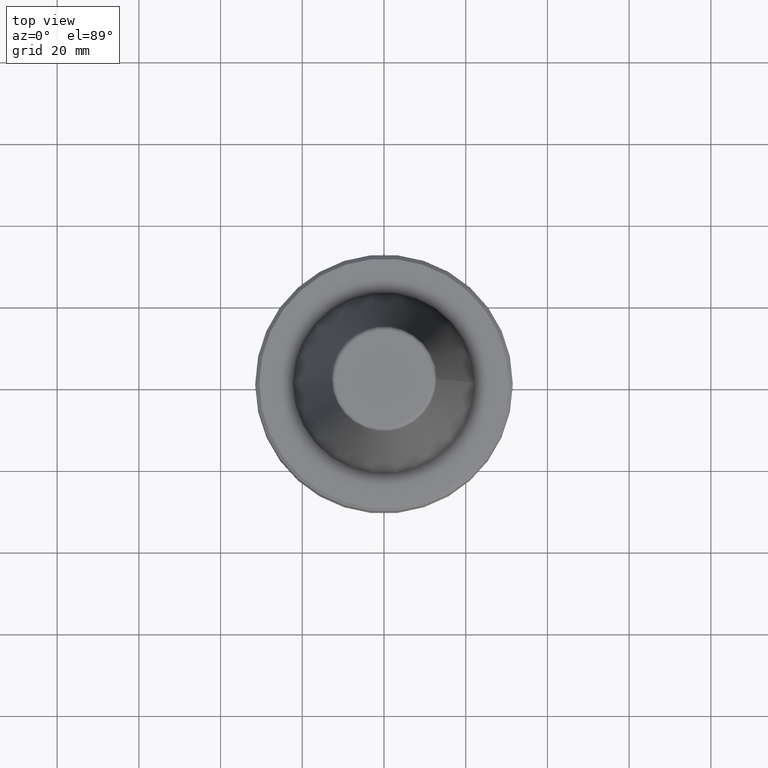
[diagram: clean part render]
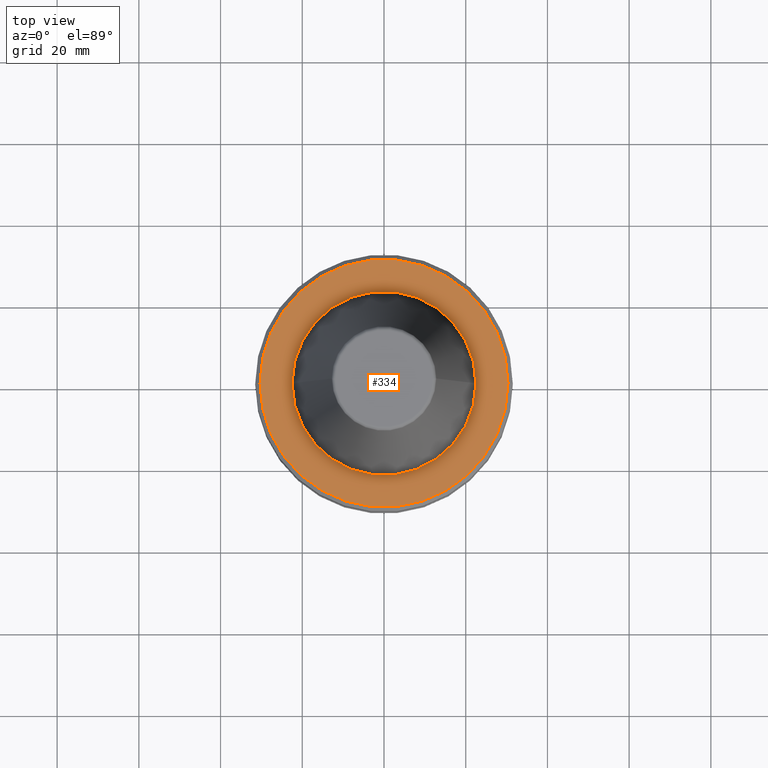
[diagram: same view with one face highlighted and labeled with its STEP entity id]
A machine part, top view. The second image highlights one B-rep face of the part: STEP entity #334.
In plain terms, the highlighted planar face has unit normal (0, -0, 1).
Its self-contained STEP definition (entity closure, byte-faithful):
#2 = AXIS2_PLACEMENT_3D ( 'NONE', #409, #1098, #512 ) ;
#6 = EDGE_CURVE ( 'NONE', #986, #183, #612, .T. ) ;
#10 = AXIS2_PLACEMENT_3D ( 'NONE', #427, #1120, #760 ) ;
#12 = CARTESIAN_POINT ( 'NONE',  ( 22.50000000000000000, 0.0000000000000000000, -2.000000000000001300 ) ) ;
#18 = CARTESIAN_POINT ( 'NONE',  ( -30.33431457505076200, 3.732201245991191800E-015, -2.000000000000001800 ) ) ;
#31 = VERTEX_POINT ( 'NONE', #593 ) ;
#66 = CARTESIAN_POINT ( 'NONE',  ( -22.50000000000000000, 2.755455298081544800E-015, -2.000000000000001300 ) ) ;
#73 = DIRECTION ( 'NONE',  ( 1.000000000000000000, 0.0000000000000000000, 0.0000000000000000000 ) ) ;
#159 = CARTESIAN_POINT ( 'NONE',  ( 0.0000000000000000000, 0.0000000000000000000, -2.000000000000001800 ) ) ;
#176 = FACE_OUTER_BOUND ( 'NONE', #209, .T. ) ;
#183 = VERTEX_POINT ( 'NONE', #12 ) ;
#209 = EDGE_LOOP ( 'NONE', ( #963, #1068 ) ) ;
#246 = EDGE_CURVE ( 'NONE', #265, #31, #833, .T. ) ;
#265 = VERTEX_POINT ( 'NONE', #18 ) ;
#334 = ADVANCED_FACE ( 'NONE', ( #176, #410 ), #471, .T. ) ;
#342 = CIRCLE ( 'NONE', #10, 30.33431457505076200 ) ;
#383 = EDGE_CURVE ( 'NONE', #31, #265, #342, .T. ) ;
#409 = CARTESIAN_POINT ( 'NONE',  ( 0.0000000000000000000, 0.0000000000000000000, -2.000000000000001800 ) ) ;
#410 = FACE_BOUND ( 'NONE', #1096, .T. ) ;
#427 = CARTESIAN_POINT ( 'NONE',  ( 0.0000000000000000000, 0.0000000000000000000, -2.000000000000001800 ) ) ;
#456 = ORIENTED_EDGE ( 'NONE', *, *, #663, .F. ) ;
#471 = PLANE ( 'NONE',  #1067 ) ;
#512 = DIRECTION ( 'NONE',  ( 1.000000000000000000, 0.0000000000000000000, 0.0000000000000000000 ) ) ;
#517 = DIRECTION ( 'NONE',  ( 1.000000000000000000, 0.0000000000000000000, 0.0000000000000000000 ) ) ;
#540 = DIRECTION ( 'NONE',  ( -0.0000000000000000000, -0.0000000000000000000, 1.000000000000000000 ) ) ;
#593 = CARTESIAN_POINT ( 'NONE',  ( 30.33431457505076200, 0.0000000000000000000, -2.000000000000001800 ) ) ;
#612 = CIRCLE ( 'NONE', #1187, 22.50000000000000000 ) ;
#662 = CARTESIAN_POINT ( 'NONE',  ( 0.0000000000000000000, 0.0000000000000000000, -2.000000000000002700 ) ) ;
#663 = EDGE_CURVE ( 'NONE', #183, #986, #867, .T. ) ;
#674 = DIRECTION ( 'NONE',  ( -0.0000000000000000000, -0.0000000000000000000, 1.000000000000000000 ) ) ;
#760 = DIRECTION ( 'NONE',  ( 1.000000000000000000, 0.0000000000000000000, 0.0000000000000000000 ) ) ;
#786 = AXIS2_PLACEMENT_3D ( 'NONE', #1126, #540, #1231 ) ;
#833 = CIRCLE ( 'NONE', #2, 30.33431457505076200 ) ;
#867 = CIRCLE ( 'NONE', #786, 22.50000000000000000 ) ;
#963 = ORIENTED_EDGE ( 'NONE', *, *, #383, .T. ) ;
#986 = VERTEX_POINT ( 'NONE', #66 ) ;
#1067 = AXIS2_PLACEMENT_3D ( 'NONE', #662, #1251, #517 ) ;
#1068 = ORIENTED_EDGE ( 'NONE', *, *, #246, .T. ) ;
#1096 = EDGE_LOOP ( 'NONE', ( #456, #1163 ) ) ;
#1098 = DIRECTION ( 'NONE',  ( -0.0000000000000000000, -0.0000000000000000000, 1.000000000000000000 ) ) ;
#1120 = DIRECTION ( 'NONE',  ( -0.0000000000000000000, -0.0000000000000000000, 1.000000000000000000 ) ) ;
#1126 = CARTESIAN_POINT ( 'NONE',  ( 0.0000000000000000000, 0.0000000000000000000, -2.000000000000001800 ) ) ;
#1163 = ORIENTED_EDGE ( 'NONE', *, *, #6, .F. ) ;
#1187 = AXIS2_PLACEMENT_3D ( 'NONE', #159, #674, #73 ) ;
#1231 = DIRECTION ( 'NONE',  ( 1.000000000000000000, 0.0000000000000000000, 0.0000000000000000000 ) ) ;
#1251 = DIRECTION ( 'NONE',  ( 0.0000000000000000000, -0.0000000000000000000, 1.000000000000000000 ) ) ;